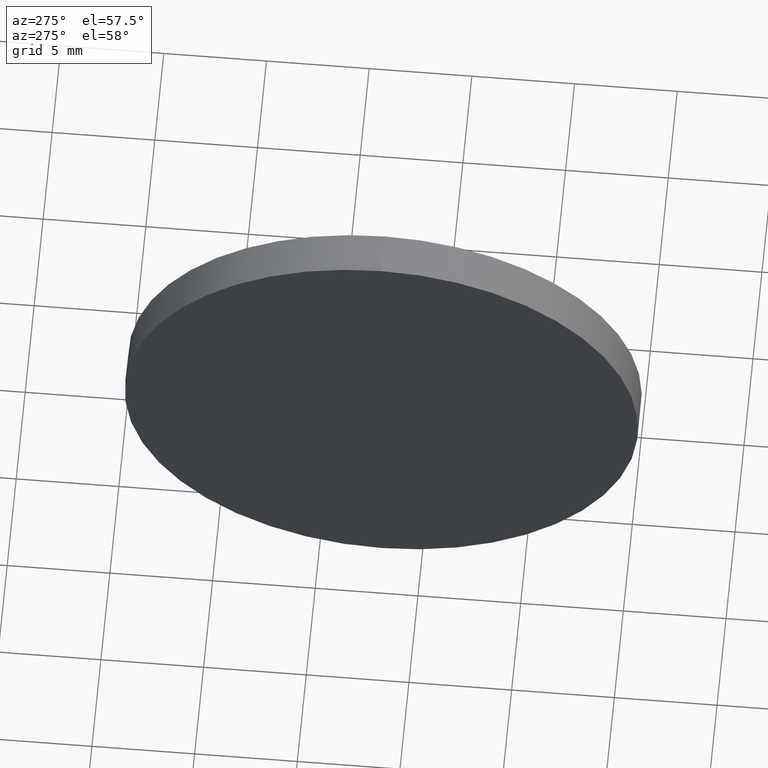
[diagram: clean part render]
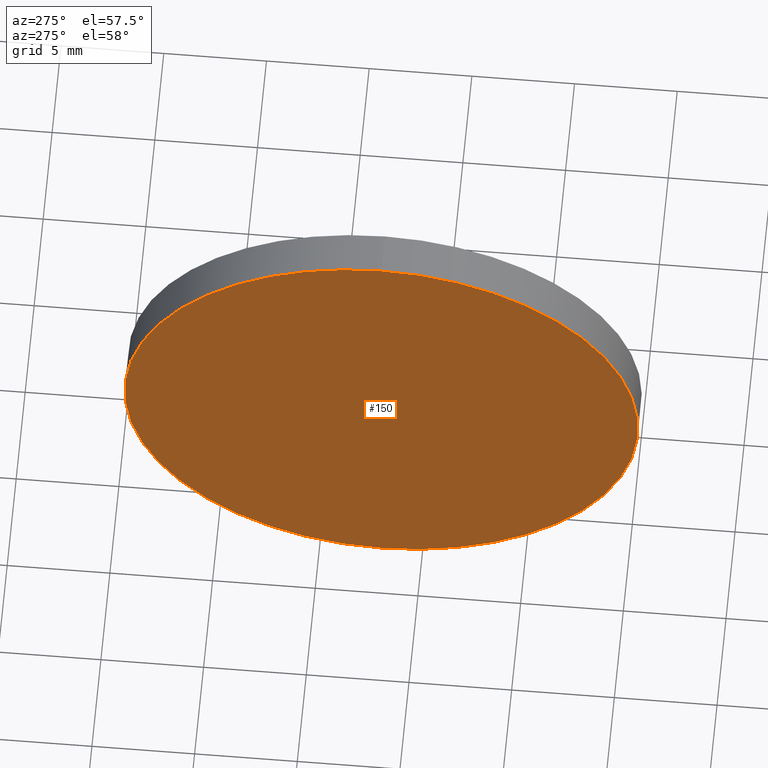
[diagram: same view with one face highlighted and labeled with its STEP entity id]
A machine part, auxiliary view. The second image highlights one B-rep face of the part: STEP entity #150.
In plain terms, the highlighted planar face has unit normal (1, 0, 0).
Its self-contained STEP definition (entity closure, byte-faithful):
#10 = EDGE_CURVE ( 'NONE', #94, #63, #162, .T. ) ;
#15 = PLANE ( 'NONE',  #31 ) ;
#18 = EDGE_CURVE ( 'NONE', #63, #94, #50, .T. ) ;
#30 = DIRECTION ( 'NONE',  ( 0.0000000000000000000, 0.0000000000000000000, 1.000000000000000000 ) ) ;
#31 = AXIS2_PLACEMENT_3D ( 'NONE', #168, #86, #169 ) ;
#46 = ORIENTED_EDGE ( 'NONE', *, *, #18, .T. ) ;
#50 = CIRCLE ( 'NONE', #83, 12.49999999999998400 ) ;
#51 = CARTESIAN_POINT ( 'NONE',  ( 577.2456314118285300, 196.9790640844909100, 12.49999999999998400 ) ) ;
#55 = EDGE_LOOP ( 'NONE', ( #113, #46 ) ) ;
#58 = CARTESIAN_POINT ( 'NONE',  ( 577.2456314118285300, 196.9790640844909100, 0.0000000000000000000 ) ) ;
#63 = VERTEX_POINT ( 'NONE', #143 ) ;
#67 = FACE_OUTER_BOUND ( 'NONE', #55, .T. ) ;
#72 = DIRECTION ( 'NONE',  ( -1.000000000000000000, -0.0000000000000000000, -0.0000000000000000000 ) ) ;
#77 = CARTESIAN_POINT ( 'NONE',  ( 577.2456314118285300, 196.9790640844909100, 0.0000000000000000000 ) ) ;
#83 = AXIS2_PLACEMENT_3D ( 'NONE', #58, #171, #30 ) ;
#86 = DIRECTION ( 'NONE',  ( 1.000000000000000000, 0.0000000000000000000, 0.0000000000000000000 ) ) ;
#94 = VERTEX_POINT ( 'NONE', #51 ) ;
#113 = ORIENTED_EDGE ( 'NONE', *, *, #10, .T. ) ;
#118 = DIRECTION ( 'NONE',  ( 0.0000000000000000000, 0.0000000000000000000, 1.000000000000000000 ) ) ;
#143 = CARTESIAN_POINT ( 'NONE',  ( 577.2456314118285300, 196.9790640844909100, -12.49999999999998400 ) ) ;
#150 = ADVANCED_FACE ( 'NONE', ( #67 ), #15, .F. ) ;
#162 = CIRCLE ( 'NONE', #181, 12.49999999999998400 ) ;
#168 = CARTESIAN_POINT ( 'NONE',  ( 577.2456314118285300, 196.9790640844909100, 0.0000000000000000000 ) ) ;
#169 = DIRECTION ( 'NONE',  ( 0.0000000000000000000, 0.0000000000000000000, -1.000000000000000000 ) ) ;
#171 = DIRECTION ( 'NONE',  ( -1.000000000000000000, -0.0000000000000000000, -0.0000000000000000000 ) ) ;
#181 = AXIS2_PLACEMENT_3D ( 'NONE', #77, #72, #118 ) ;